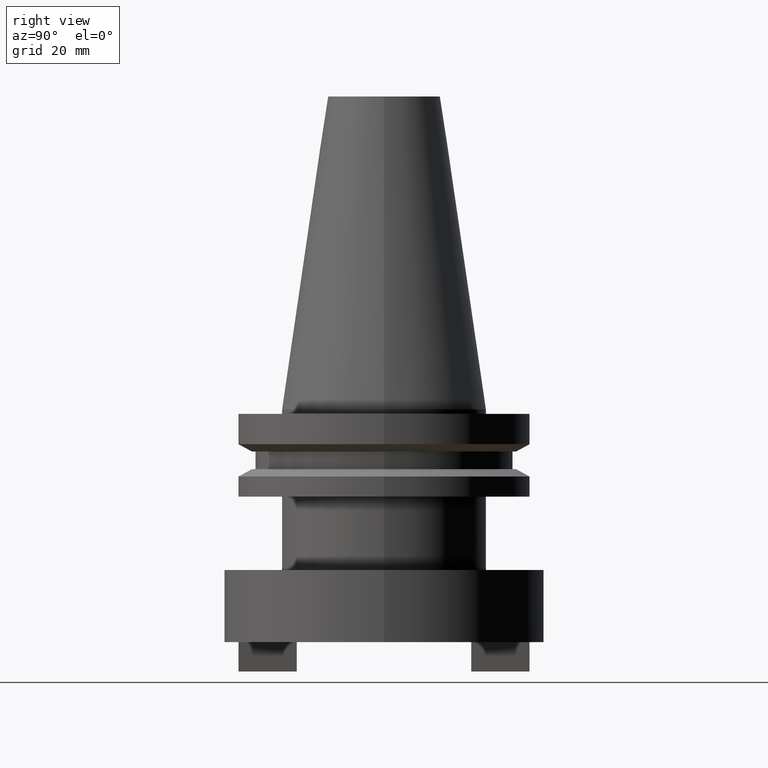
[diagram: clean part render]
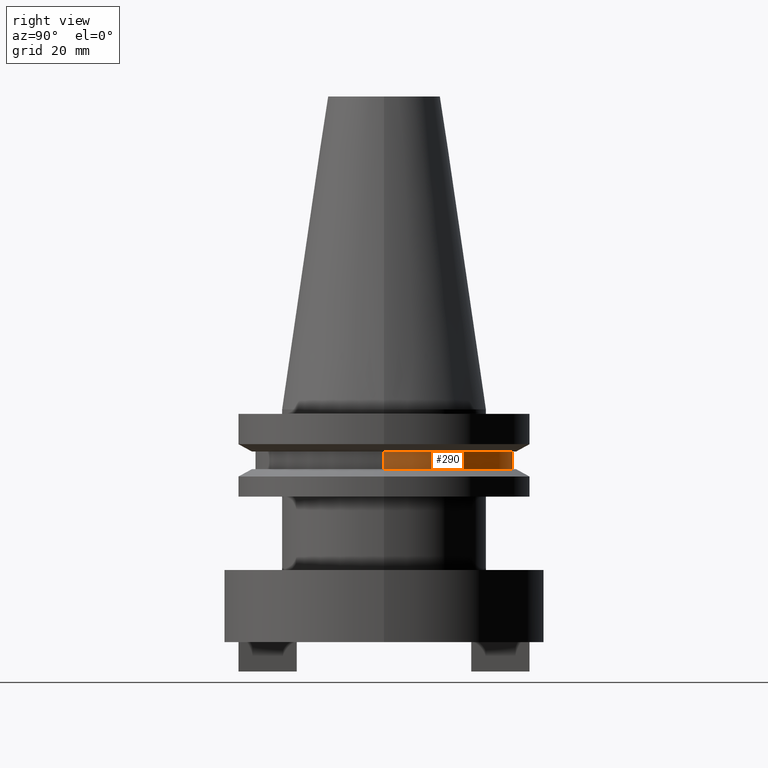
[diagram: same view with one face highlighted and labeled with its STEP entity id]
A machine part, right view. The second image highlights one B-rep face of the part: STEP entity #290.
In plain terms, the highlighted cylindrical surface (partial cylindrical patch) has radius 28.18 mm, axis along (-0, -0, 1).
Its self-contained STEP definition (entity closure, byte-faithful):
#16 = EDGE_CURVE ( 'NONE', #118, #394, #98, .T. ) ;
#62 = CIRCLE ( 'NONE', #960, 28.17999999999999972 ) ;
#98 = LINE ( 'NONE', #337, #467 ) ;
#118 = VERTEX_POINT ( 'NONE', #873 ) ;
#212 = EDGE_CURVE ( 'NONE', #118, #824, #722, .T. ) ;
#216 = CARTESIAN_POINT ( 'NONE',  ( -28.17999999999999972, 3.451054679997241634E-15, -9.204999999999991189 ) ) ;
#224 = CYLINDRICAL_SURFACE ( 'NONE', #944, 28.17999999999999972 ) ;
#290 = ADVANCED_FACE ( 'NONE', ( #719 ), #224, .T. ) ;
#307 = CARTESIAN_POINT ( 'NONE',  ( 0.000000000000000000, 0.000000000000000000, -13.05499999999999794 ) ) ;
#324 = DIRECTION ( 'NONE',  ( 1.000000000000000000, 0.000000000000000000, 0.000000000000000000 ) ) ;
#337 = CARTESIAN_POINT ( 'NONE',  ( 28.17999999999999972, 0.000000000000000000, 68.25000000000000000 ) ) ;
#381 = DIRECTION ( 'NONE',  ( 1.000000000000000000, 0.000000000000000000, 0.000000000000000000 ) ) ;
#382 = CARTESIAN_POINT ( 'NONE',  ( -28.17999999999999972, 3.451054679997241634E-15, -13.05499999999999794 ) ) ;
#394 = VERTEX_POINT ( 'NONE', #500 ) ;
#405 = VECTOR ( 'NONE', #1060, 1000.000000000000000 ) ;
#467 = VECTOR ( 'NONE', #687, 1000.000000000000000 ) ;
#475 = DIRECTION ( 'NONE',  ( -0.000000000000000000, -0.000000000000000000, 1.000000000000000000 ) ) ;
#479 = EDGE_CURVE ( 'NONE', #824, #748, #639, .T. ) ;
#500 = CARTESIAN_POINT ( 'NONE',  ( 28.17999999999999972, 0.000000000000000000, -9.204999999999991189 ) ) ;
#532 = ORIENTED_EDGE ( 'NONE', *, *, #912, .F. ) ;
#639 = LINE ( 'NONE', #975, #405 ) ;
#687 = DIRECTION ( 'NONE',  ( -0.000000000000000000, -0.000000000000000000, 1.000000000000000000 ) ) ;
#719 = FACE_OUTER_BOUND ( 'NONE', #773, .T. ) ;
#722 = CIRCLE ( 'NONE', #1065, 28.17999999999999972 ) ;
#730 = ORIENTED_EDGE ( 'NONE', *, *, #212, .T. ) ;
#748 = VERTEX_POINT ( 'NONE', #216 ) ;
#773 = EDGE_LOOP ( 'NONE', ( #730, #921, #532, #875 ) ) ;
#807 = DIRECTION ( 'NONE',  ( 1.000000000000000000, 0.000000000000000000, 0.000000000000000000 ) ) ;
#822 = DIRECTION ( 'NONE',  ( -0.000000000000000000, -0.000000000000000000, 1.000000000000000000 ) ) ;
#824 = VERTEX_POINT ( 'NONE', #382 ) ;
#873 = CARTESIAN_POINT ( 'NONE',  ( 28.17999999999999972, 0.000000000000000000, -13.05499999999999794 ) ) ;
#875 = ORIENTED_EDGE ( 'NONE', *, *, #16, .F. ) ;
#903 = CARTESIAN_POINT ( 'NONE',  ( 0.000000000000000000, 0.000000000000000000, -9.204999999999991189 ) ) ;
#912 = EDGE_CURVE ( 'NONE', #394, #748, #62, .T. ) ;
#921 = ORIENTED_EDGE ( 'NONE', *, *, #479, .T. ) ;
#944 = AXIS2_PLACEMENT_3D ( 'NONE', #1046, #822, #324 ) ;
#960 = AXIS2_PLACEMENT_3D ( 'NONE', #903, #475, #807 ) ;
#965 = DIRECTION ( 'NONE',  ( -0.000000000000000000, -0.000000000000000000, 1.000000000000000000 ) ) ;
#975 = CARTESIAN_POINT ( 'NONE',  ( -28.17999999999999972, 3.451054679997241634E-15, 68.25000000000000000 ) ) ;
#1046 = CARTESIAN_POINT ( 'NONE',  ( 0.000000000000000000, 0.000000000000000000, 68.25000000000000000 ) ) ;
#1060 = DIRECTION ( 'NONE',  ( -0.000000000000000000, -0.000000000000000000, 1.000000000000000000 ) ) ;
#1065 = AXIS2_PLACEMENT_3D ( 'NONE', #307, #965, #381 ) ;